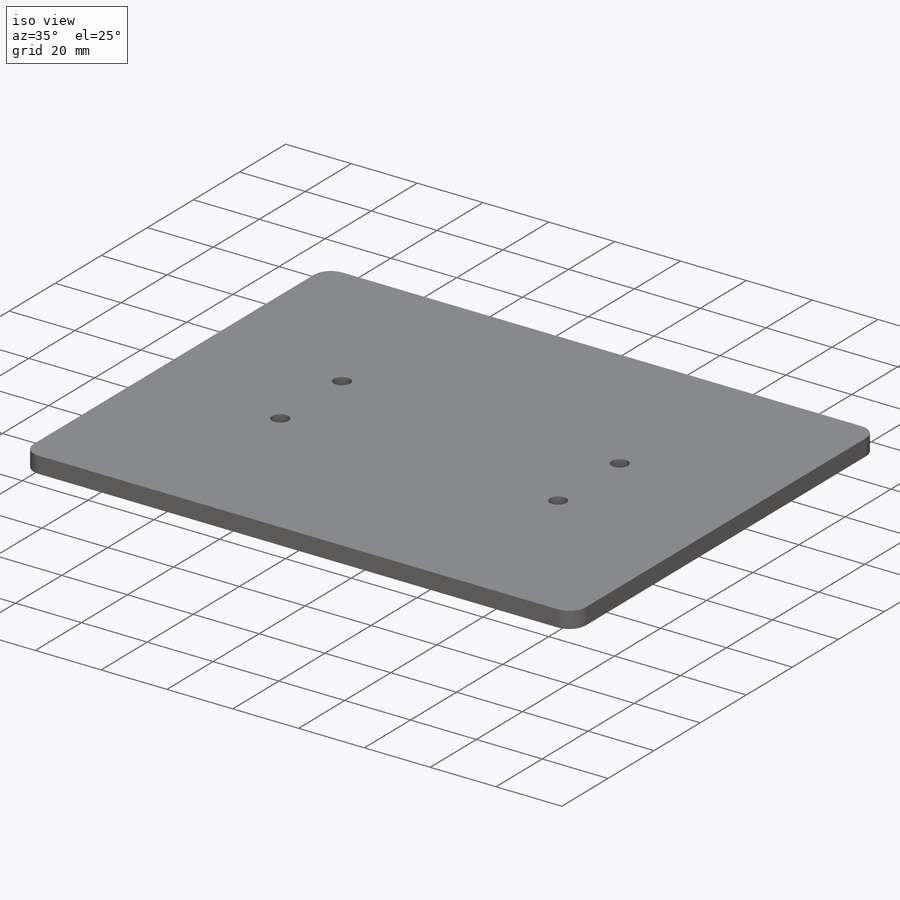
[diagram: iso view]
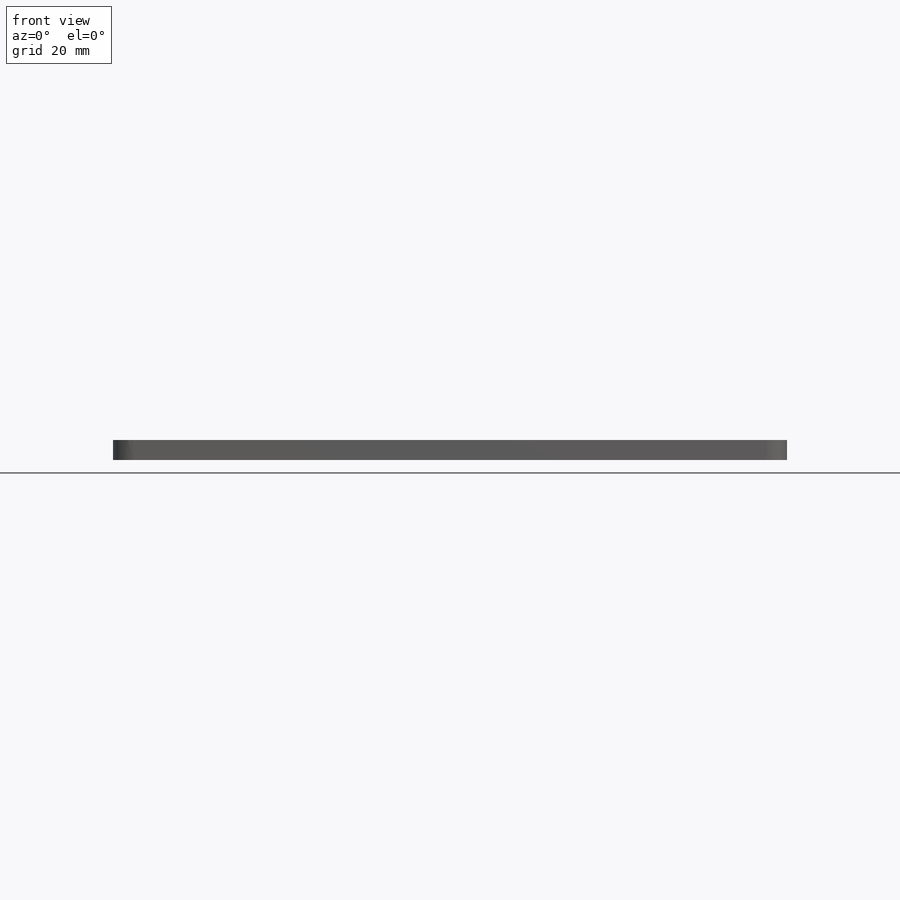
[diagram: front view]
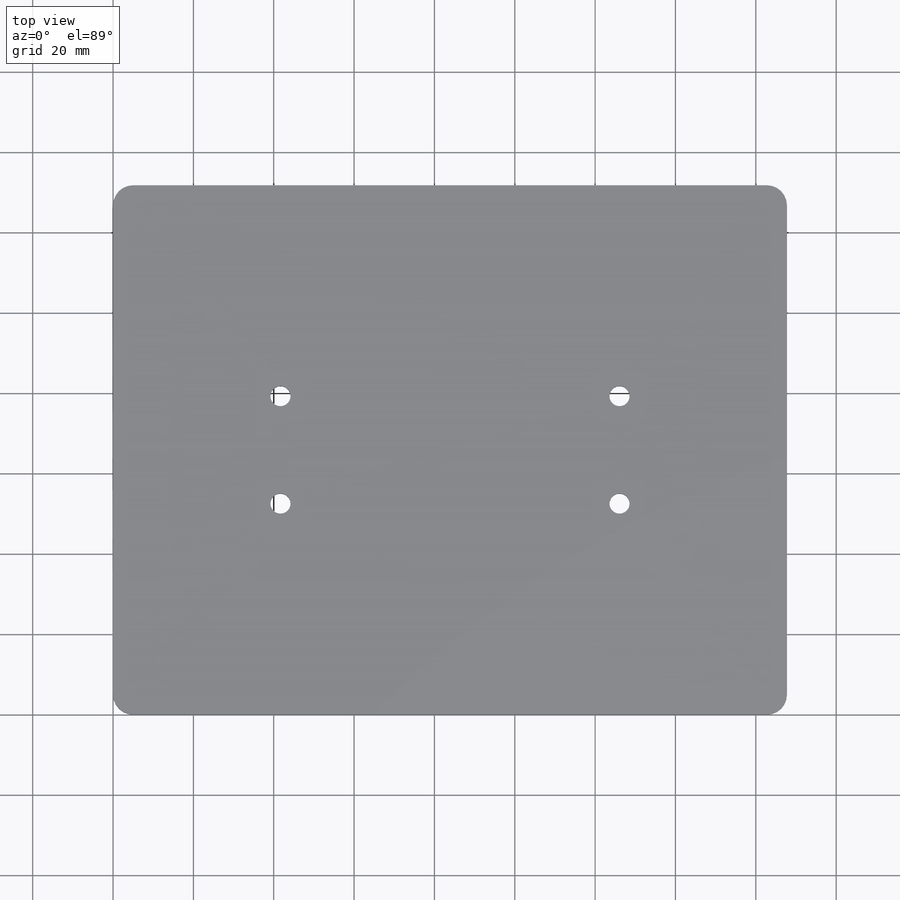
[diagram: top view]
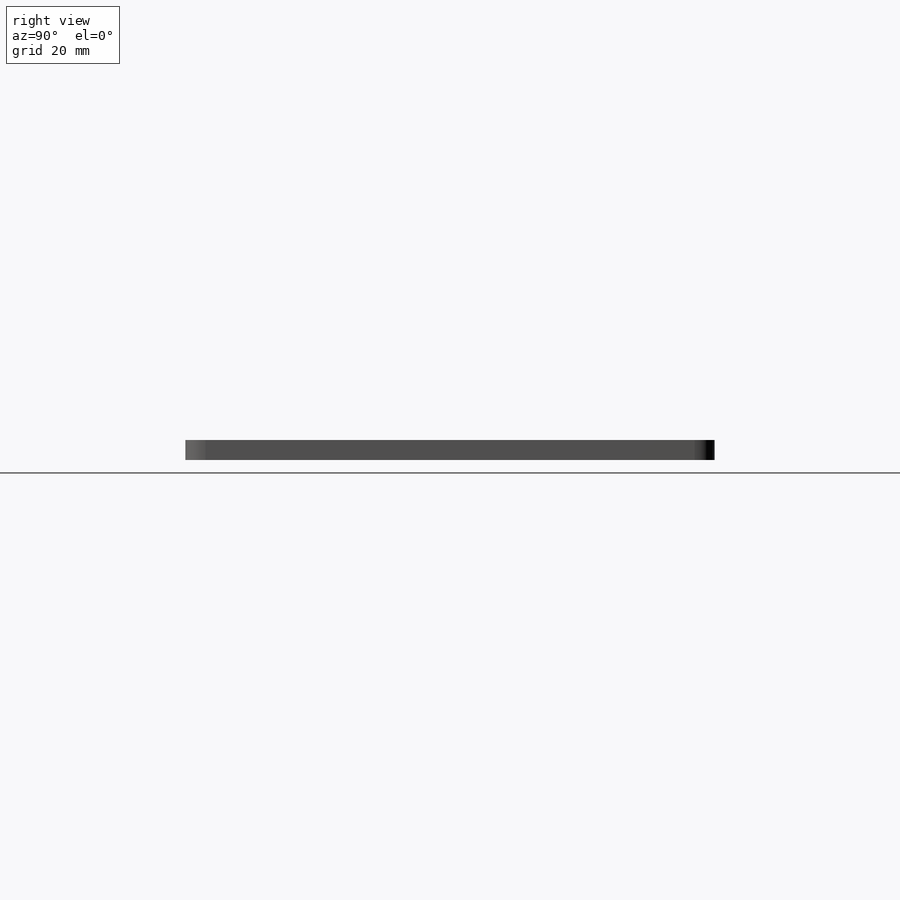
[diagram: right view]
SOLIDWORKS PART (.sldprt)
format: sldprt  version: not decoded by parser v0  size: 248,832 bytes
history: native  units: mm
features: fillet x4, plane x3, sketch x2, material x1, extrude x1, cut_extrude x1 (+10 scaffold rows collapsed)
feature tree (22):
  scaffold x10  (default folders/planes/origin — collapsed)
  material  "Материал <не указан>"
  plane  "Спереди"
  plane  "Сверху"
  plane  "Справа"
  sketch  "Эскиз1"  dims[c1.D1=90.0mm c1.D2=0.0deg c2.D2=131.75mm c2.D3=90.0mm c2.D1=167.75mm c3.D3=167.75mm]
  extrude  "Бобышка-Вытянуть1"  Depth=5mm
  fillet  "Скругление1"  Radius=5mm
  fillet  "Скругление2"  Radius=5mm
  fillet  "Скругление3"  Radius=5mm
  fillet  "Скругление4"  Radius=5mm
  sketch  "Эскиз2"  dims[c1.D3=5.0mm c1.D5=5.0mm c1.D1=104.4mm c1.D2=71.75mm c2.D3=~3.952699mm c2.D4=10.0mm c2.D5=22.5mm c2.D6=84.4mm c2.D7=26.75mm]
  cut_extrude  "Вырез-Вытянуть1"  Depth=10mm
decode coverage: 8 of 8 modeling features carry decoded parameters
note: ~ marks probable driven/reference dimensions
note: suppression state not decoded; provenance and decode notes live in map.json
